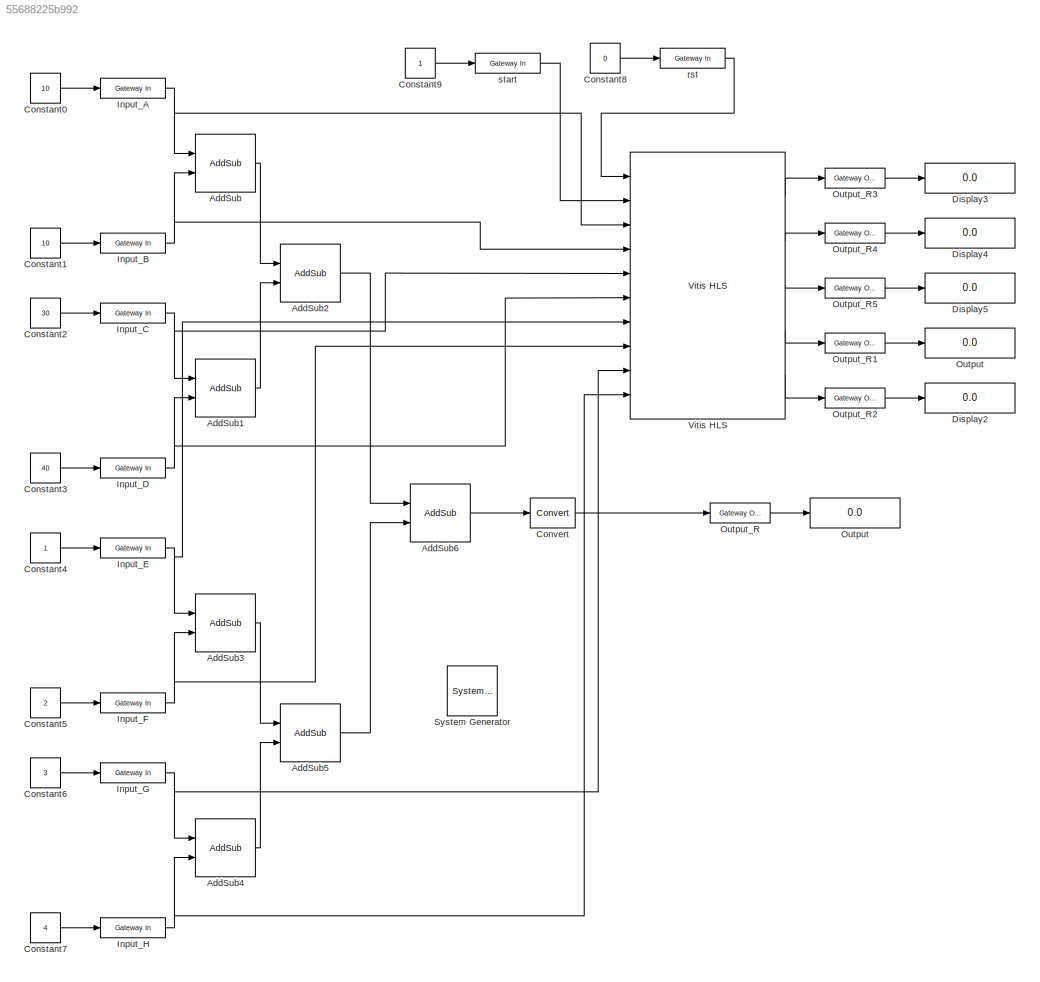
MODEL slx_55688225b992
KIND model
CONFIG AbsTol = auto
CONFIG EnableMultiTasking = off
CONFIG FixedStep = auto
CONFIG MaxStep = auto
CONFIG MinStep = auto
CONFIG RelTol = 1e-3
CONFIG SampleTimeConstraint = Unconstrained
CONFIG SolverName = FixedStepDiscrete
CONFIG StartTime = 0.0
CONFIG StopTime = 10.0
BLOCK [Reference]  System Generator  REF=xbsIndex_r4/ System Generator
  AttributesFormatString = System\nGenerator
  Ports = []
  SourceBlock = xbsIndex_r4/ System Generator
  SourceType = Xilinx System Generator Block
  Tag = genX
  UserDataPersistent = on
BLOCK [Reference] AddSub  REF=hdlBasic/AddSub
  Ports = [2, 1]
  SourceBlock = hdlBasic/AddSub
  SourceType = Adder/Subtracter Block
BLOCK [Reference] AddSub1  REF=hdlBasic/AddSub
  Ports = [2, 1]
  SourceBlock = hdlBasic/AddSub
  SourceType = Adder/Subtracter Block
BLOCK [Reference] AddSub2  REF=hdlBasic/AddSub
  Ports = [2, 1]
  SourceBlock = hdlBasic/AddSub
  SourceType = Adder/Subtracter Block
BLOCK [Reference] AddSub3  REF=hdlBasic/AddSub
  Ports = [2, 1]
  SourceBlock = hdlBasic/AddSub
  SourceType = Adder/Subtracter Block
BLOCK [Reference] AddSub4  REF=hdlBasic/AddSub
  Ports = [2, 1]
  SourceBlock = hdlBasic/AddSub
  SourceType = Adder/Subtracter Block
BLOCK [Reference] AddSub5  REF=hdlBasic/AddSub
  Ports = [2, 1]
  SourceBlock = hdlBasic/AddSub
  SourceType = Adder/Subtracter Block
BLOCK [Reference] AddSub6  REF=hdlBasic/AddSub
  Ports = [2, 1]
  SourceBlock = hdlBasic/AddSub
  SourceType = Adder/Subtracter Block
BLOCK [Constant] Constant0
  Value = 10
BLOCK [Constant] Constant1
  Value = 10
BLOCK [Constant] Constant2
  Value = 30
BLOCK [Constant] Constant3
  Value = 40
BLOCK [Constant] Constant4
BLOCK [Constant] Constant5
  Value = 2
BLOCK [Constant] Constant6
  Value = 3
BLOCK [Constant] Constant7
  Value = 4
BLOCK [Constant] Constant8
  Value = 0
BLOCK [Constant] Constant9
BLOCK [Reference] Convert  REF=hdlBasic/Convert
  Ports = [1, 1]
  SourceBlock = hdlBasic/Convert
  SourceType = Type Converter Block
BLOCK [Display] Display2
  Decimation = 1
  Ports = [1]
BLOCK [Display] Display3
  Decimation = 1
  Ports = [1]
BLOCK [Display] Display4
  Decimation = 1
  Ports = [1]
BLOCK [Display] Display5
  Decimation = 1
  Ports = [1]
BLOCK [Reference] Input_A   REF=hdlBasic/Gateway In
  Ports = [1, 1]
  SourceBlock = hdlBasic/Gateway In
  SourceType = Gateway In Block
BLOCK [Reference] Input_B  REF=hdlBasic/Gateway In
  Ports = [1, 1]
  SourceBlock = hdlBasic/Gateway In
  SourceType = Gateway In Block
BLOCK [Reference] Input_C  REF=hdlBasic/Gateway In
  Ports = [1, 1]
  SourceBlock = hdlBasic/Gateway In
  SourceType = Gateway In Block
BLOCK [Reference] Input_D  REF=hdlBasic/Gateway In
  Ports = [1, 1]
  SourceBlock = hdlBasic/Gateway In
  SourceType = Gateway In Block
BLOCK [Reference] Input_E  REF=hdlBasic/Gateway In
  Ports = [1, 1]
  SourceBlock = hdlBasic/Gateway In
  SourceType = Gateway In Block
BLOCK [Reference] Input_F  REF=hdlBasic/Gateway In
  Ports = [1, 1]
  SourceBlock = hdlBasic/Gateway In
  SourceType = Gateway In Block
BLOCK [Reference] Input_G  REF=hdlBasic/Gateway In
  Ports = [1, 1]
  SourceBlock = hdlBasic/Gateway In
  SourceType = Gateway In Block
BLOCK [Reference] Input_H  REF=hdlBasic/Gateway In
  Ports = [1, 1]
  SourceBlock = hdlBasic/Gateway In
  SourceType = Gateway In Block
BLOCK [Display] Output
  Decimation = 1
  Ports = [1]
BLOCK [Display] Output 
  Decimation = 1
  Ports = [1]
BLOCK [Reference] Output_R  REF=hdlBasic/Gateway Out
  Ports = [1, 1]
  SourceBlock = hdlBasic/Gateway Out
  SourceType = Gateway Out Block
BLOCK [Reference] Output_R1  REF=hdlBasic/Gateway Out
  Ports = [1, 1]
  SourceBlock = hdlBasic/Gateway Out
  SourceType = Gateway Out Block
BLOCK [Reference] Output_R2  REF=hdlBasic/Gateway Out
  Ports = [1, 1]
  SourceBlock = hdlBasic/Gateway Out
  SourceType = Gateway Out Block
BLOCK [Reference] Output_R3  REF=hdlBasic/Gateway Out
  Ports = [1, 1]
  SourceBlock = hdlBasic/Gateway Out
  SourceType = Gateway Out Block
BLOCK [Reference] Output_R4  REF=hdlBasic/Gateway Out
  Ports = [1, 1]
  SourceBlock = hdlBasic/Gateway Out
  SourceType = Gateway Out Block
BLOCK [Reference] Output_R5  REF=hdlBasic/Gateway Out
  Ports = [1, 1]
  SourceBlock = hdlBasic/Gateway Out
  SourceType = Gateway Out Block
BLOCK [Reference] Vitis HLS  REF=hdlBasic/Vitis HLS
  Ports = [10, 5]
  SourceBlock = hdlBasic/Vitis HLS
  SourceType = Xilinx High Level Synthesis Block
BLOCK [Reference] rst   REF=hdlBasic/Gateway In
  Ports = [1, 1]
  SourceBlock = hdlBasic/Gateway In
  SourceType = Gateway In Block
BLOCK [Reference] start   REF=hdlBasic/Gateway In
  Ports = [1, 1]
  SourceBlock = hdlBasic/Gateway In
  SourceType = Gateway In Block
LINE AddSub1:1 -> AddSub2:2
LINE AddSub2:1 -> AddSub6:1
LINE AddSub3:1 -> AddSub5:1
LINE AddSub4:1 -> AddSub5:2
LINE AddSub5:1 -> AddSub6:2
LINE AddSub6:1 -> Convert:1
LINE AddSub:1 -> AddSub2:1
LINE Constant0:1 -> Input_A :1
LINE Constant1:1 -> Input_B:1
LINE Constant2:1 -> Input_C:1
LINE Constant3:1 -> Input_D:1
LINE Constant4:1 -> Input_E:1
LINE Constant5:1 -> Input_F:1
LINE Constant6:1 -> Input_G:1
LINE Constant7:1 -> Input_H:1
LINE Constant8:1 -> rst :1
LINE Constant9:1 -> start :1
LINE Convert:1 -> Output_R:1
NET Input_A :1 -> AddSub:1, Vitis HLS:3
NET Input_B:1 -> AddSub:2, Vitis HLS:4
NET Input_C:1 -> AddSub1:1, Vitis HLS:5
NET Input_D:1 -> AddSub1:2, Vitis HLS:6
NET Input_E:1 -> AddSub3:1, Vitis HLS:7
NET Input_F:1 -> AddSub3:2, Vitis HLS:8
NET Input_G:1 -> AddSub4:1, Vitis HLS:9
NET Input_H:1 -> AddSub4:2, Vitis HLS:10
LINE Output_R1:1 -> Output:1
LINE Output_R2:1 -> Display2:1
LINE Output_R3:1 -> Display3:1
LINE Output_R4:1 -> Display4:1
LINE Output_R5:1 -> Display5:1
LINE Output_R:1 -> Output :1
LINE Vitis HLS:1 -> Output_R3:1
LINE Vitis HLS:2 -> Output_R4:1
LINE Vitis HLS:3 -> Output_R5:1
LINE Vitis HLS:4 -> Output_R1:1
LINE Vitis HLS:5 -> Output_R2:1
LINE rst :1 -> Vitis HLS:1
LINE start :1 -> Vitis HLS:2
note: NET lines group one-source signal fan-out (src -> all destinations, sorted); 1:1 wires keep LINE
